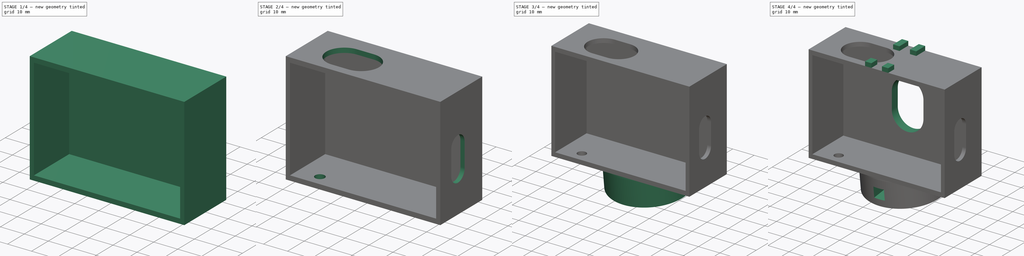
[diagram: build sequence overview — one tinted view per stage of 4, left to right]
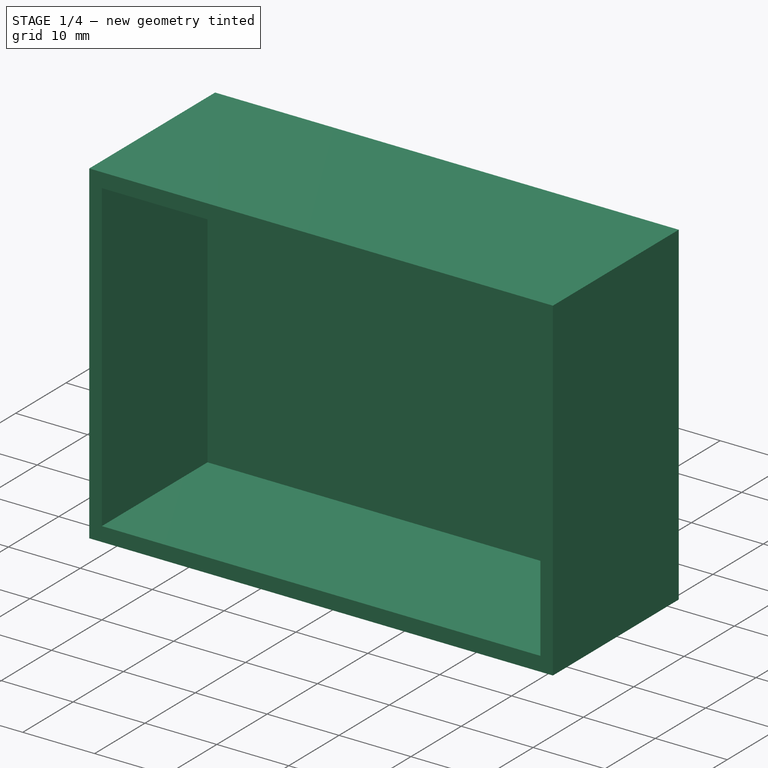
[diagram: stage 1 of 4 — iso view after this stage's code; geometry added in this stage tinted green]
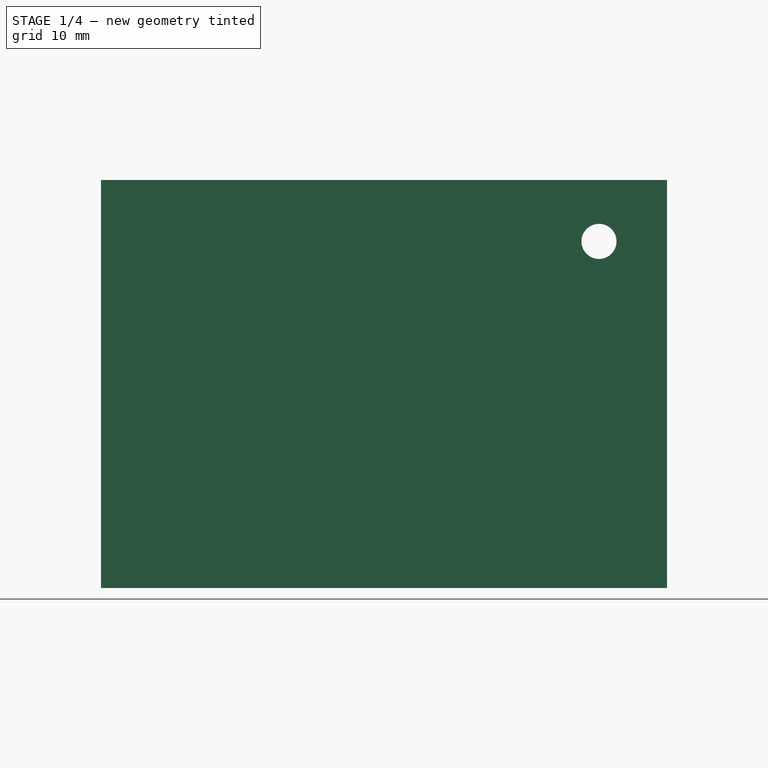
[diagram: stage 1 of 4 — front view after this stage's code; geometry added in this stage tinted green]
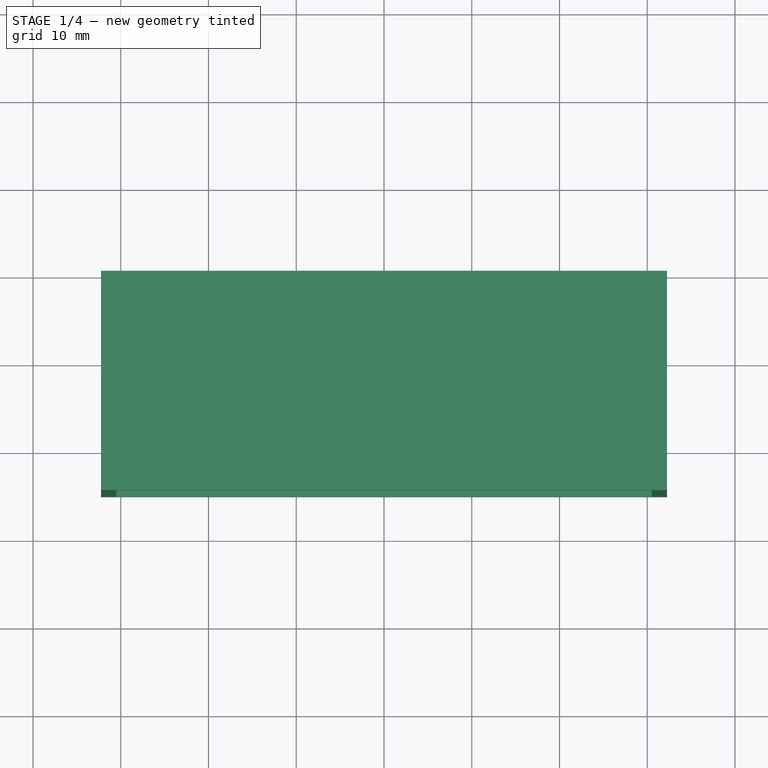
[diagram: stage 1 of 4 — top view after this stage's code; geometry added in this stage tinted green]
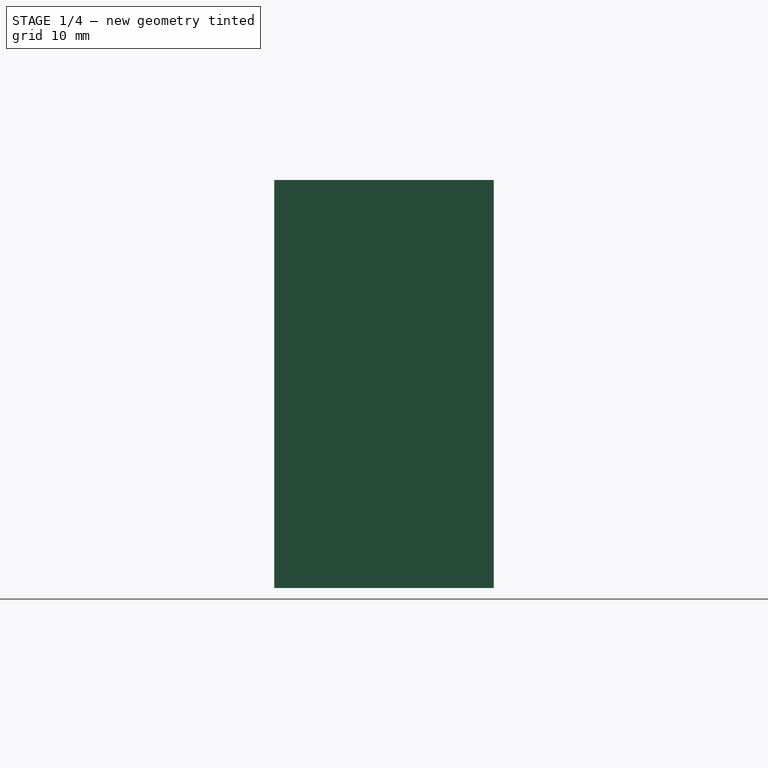
[diagram: stage 1 of 4 — right view after this stage's code; geometry added in this stage tinted green]
FCSTD DOCUMENT  (FreeCAD 0.19R)
Label: yi_holder
License: All rights reserved
LicenseURL: http://en.wikipedia.org/wiki/All_rights_reserved
objects: Sketcher::SketchObject×13, PartDesign::Pocket×8, PartDesign::Pad×5, PartDesign::Plane×1, PartDesign::Body×1
note: 41 computed .brp shape members not serialized (recipe doc carries the construction recipe); baked Part::Feature solids carry a one-line shape summary decoded from their .brp

FEATURE [Sketcher::SketchObject] Sketch
  FullyConstrained = true
  MapMode = 5
  Placement = pos=(0,0,0) rot=(1,0,0;1.5708rad)
  Support = -> [XZ_Plane]
  sketch-geometry (4):
    g0: LineSegment StartX=-32.25 StartY=23.25 StartZ=0 EndX=32.25 EndY=23.25 EndZ=0
    g1: LineSegment StartX=32.25 StartY=23.25 StartZ=0 EndX=32.25 EndY=-23.25 EndZ=0
    g2: LineSegment StartX=32.25 StartY=-23.25 StartZ=0 EndX=-32.25 EndY=-23.25 EndZ=0
    g3: LineSegment StartX=-32.25 StartY=-23.25 StartZ=0 EndX=-32.25 EndY=23.25 EndZ=0
  constraints (10):
    c: Coincident(g0,g1)
    c: Coincident(g1,g2)
    c: Coincident(g2,g3)
    c: Coincident(g3,g0)
    c: Horizontal(g2)
    c: Vertical(g1)
    c: DistanceX(g0,g0) = 64.5
    c: Symmetric(g0,g0,g-2)
    c: DistanceY(g1,g1) = 46.5
    c: Symmetric(g2,g0,g-1)
FEATURE [PartDesign::Pad] Pad
  Direction = (1,1,1)
  Length = 25
  Length2 = 100
  Placement = pos=(0,0,0) rot=(1,0,0;1.5708rad)
  Profile = -> Sketch
  Type = 0
FEATURE [Sketcher::SketchObject] Sketch001
  FullyConstrained = true
  MapMode = 5
  Placement = pos=(0,-25,1.11e-14) rot=(1,0,0;1.5708rad)
  Support = -> [Pad]
  sketch-geometry (4):
    g0: LineSegment StartX=-30.5 StartY=21.25 StartZ=0 EndX=30.5 EndY=21.25 EndZ=0
    g1: LineSegment StartX=30.5 StartY=21.25 StartZ=0 EndX=30.5 EndY=-21.25 EndZ=0
    g2: LineSegment StartX=30.5 StartY=-21.25 StartZ=0 EndX=-30.5 EndY=-21.25 EndZ=0
    g3: LineSegment StartX=-30.5 StartY=-21.25 StartZ=0 EndX=-30.5 EndY=21.25 EndZ=0
  constraints (10):
    c: Coincident(g0,g1)
    c: Coincident(g1,g2)
    c: Coincident(g2,g3)
    c: Coincident(g3,g0)
    c: Horizontal(g2)
    c: Vertical(g3)
    c: DistanceX(g0,g0) = 61
    c: Symmetric(g0,g0,g-2)
    c: Symmetric(g1,g0,g-1)
    c: DistanceY(g1,g1) = 42.5
FEATURE [PartDesign::Pocket] Pocket
  BaseFeature = -> Pad
  Length = 21
  Length2 = 100
  Placement = pos=(0,0,0) rot=(1,0,0;1.5708rad)
  Profile = -> Sketch001
  Type = 0
FEATURE [Sketcher::SketchObject] Sketch002
  ExternalGeometry = -> [Pocket]
  FullyConstrained = true
  MapMode = 5
  Placement = pos=(0,-4,4.2e-15) rot=(1,0,0;1.5708rad)
  Support = -> [Pocket]
  sketch-geometry (1):
    g0: Circle CenterX=24.5 CenterY=16.25 CenterZ=0 NormalX=0 NormalY=0 NormalZ=1 AngleXU=0 Radius=2
  constraints (3):
    c: DistanceY(g0,g-3) = 5
    c: DistanceX(g0,g-3) = 6
    c: Diameter(g0) = 4
FEATURE [PartDesign::Pocket] Pocket001
  BaseFeature = -> Pocket
  Length = 4
  Length2 = 100
  Placement = pos=(0,0,0) rot=(1,0,0;1.5708rad)
  Profile = -> Sketch002
  Type = 0
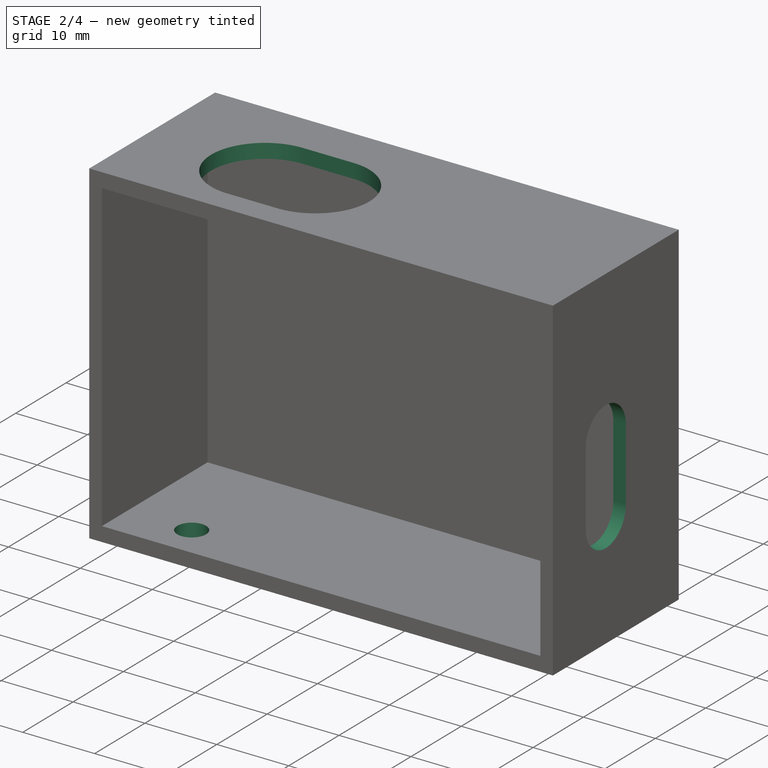
[diagram: stage 2 of 4 — iso view after this stage's code; geometry added in this stage tinted green]
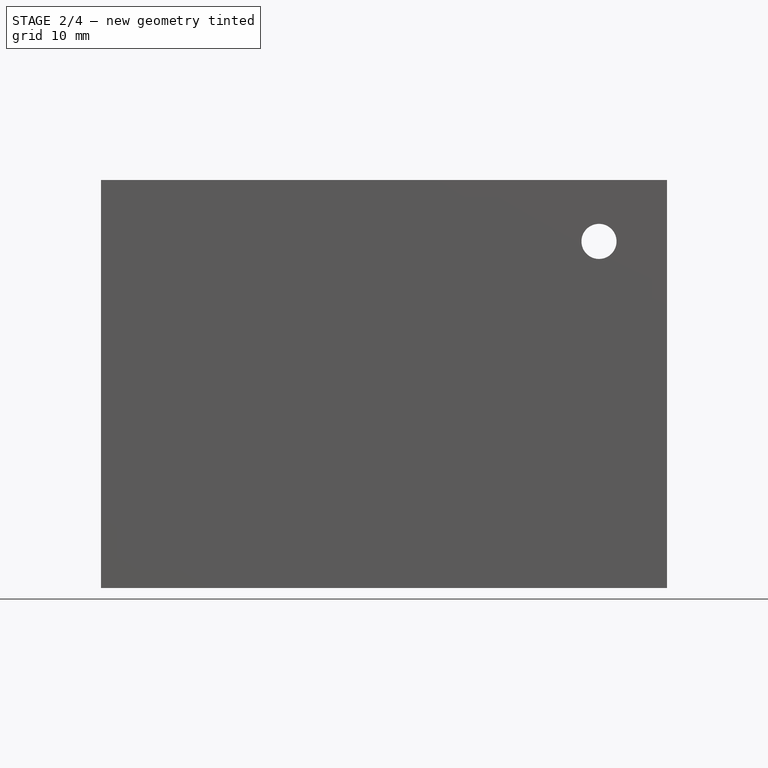
[diagram: stage 2 of 4 — front view after this stage's code; geometry added in this stage tinted green]
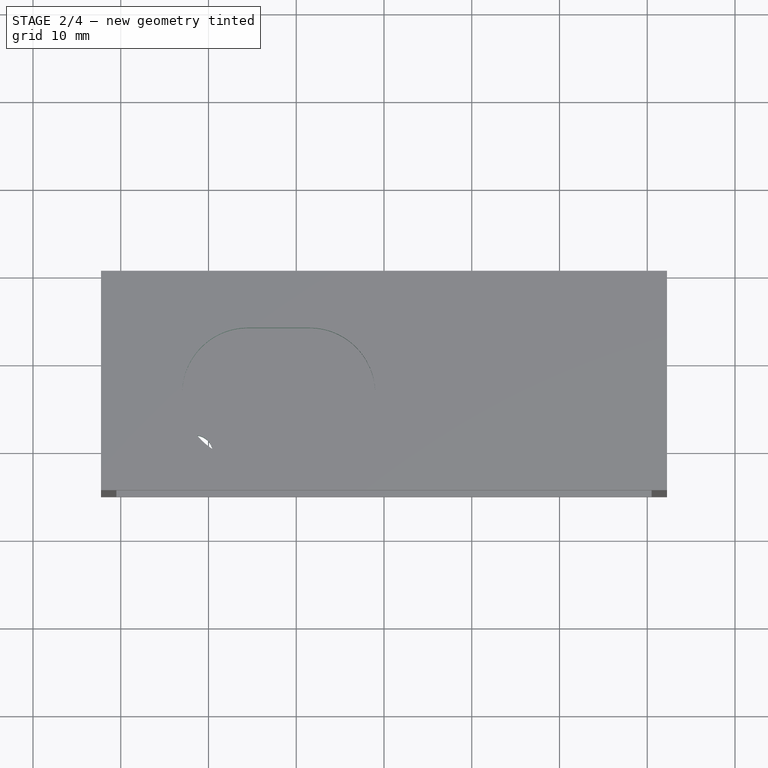
[diagram: stage 2 of 4 — top view after this stage's code; geometry added in this stage tinted green]
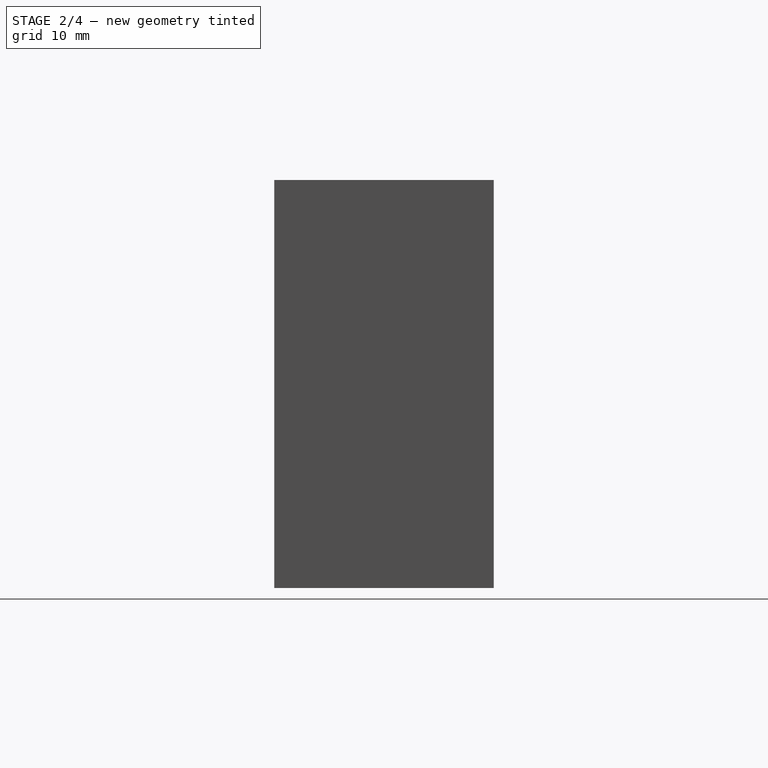
[diagram: stage 2 of 4 — right view after this stage's code; geometry added in this stage tinted green]
FEATURE [Sketcher::SketchObject] Sketch003
  ExternalGeometry = -> [Pocket001]
  FullyConstrained = true
  MapMode = 5
  Placement = pos=(32.25,0,0) rot=(0.707107,0,0.707107;3.14159rad)
  Support = -> [Pocket001]
  sketch-geometry (4):
    g0: ArcOfCircle CenterX=-7.25 CenterY=14.5 CenterZ=0 NormalX=0 NormalY=0 NormalZ=1 AngleXU=0 Radius=4 StartAngle=1.5708 EndAngle=4.71239
    g1: ArcOfCircle CenterX=2.75 CenterY=14.5 CenterZ=0 NormalX=0 NormalY=0 NormalZ=1 AngleXU=0 Radius=4 StartAngle=4.71239 EndAngle=7.85398
    g2: LineSegment StartX=-7.25 StartY=10.5 StartZ=0 EndX=2.75 EndY=10.5 EndZ=0
    g3: LineSegment StartX=-7.25 StartY=18.5 StartZ=0 EndX=2.75 EndY=18.5 EndZ=0
  constraints (10):
    c: Tangent(g0,g3) = 1.5708
    c: Tangent(g0,g2) = -1.5708
    c: Tangent(g2,g1) = -1.5708
    c: Tangent(g3,g1) = 1.5708
    c: Horizontal(g2)
    c: Equal(g0,g1)
    c: DistanceY(g1,g1) = 8
    c: DistanceX(g2,g2) = 10
    c: DistanceY(g1,g-3) = 10.5
    c: DistanceX(g1,g-3) = 18.5
FEATURE [PartDesign::Pocket] Pocket002
  BaseFeature = -> Pocket001
  Length = 2
  Length2 = 100
  Placement = pos=(0,0,0) rot=(1,0,0;1.5708rad)
  Profile = -> Sketch003
  Type = 0
FEATURE [Sketcher::SketchObject] Sketch004
  ExternalGeometry = -> [Pocket002]
  FullyConstrained = true
  MapMode = 5
  Placement = pos=(0,1.54e-14,23.25) rot=(0,0,1;3.14159rad)
  Support = -> [Pocket002]
  sketch-geometry (4):
    g0: ArcOfCircle CenterX=8.5 CenterY=14 CenterZ=0 NormalX=0 NormalY=0 NormalZ=1 AngleXU=0 Radius=7.5 StartAngle=1.5708 EndAngle=4.71239
    g1: ArcOfCircle CenterX=15.5 CenterY=14 CenterZ=0 NormalX=0 NormalY=0 NormalZ=1 AngleXU=0 Radius=7.5 StartAngle=4.71239 EndAngle=7.85398
    g2: LineSegment StartX=8.5 StartY=6.5 StartZ=0 EndX=15.5 EndY=6.5 EndZ=0
    g3: LineSegment StartX=8.5 StartY=21.5 StartZ=0 EndX=15.5 EndY=21.5 EndZ=0
  constraints (10):
    c: Tangent(g0,g3) = 1.5708
    c: Tangent(g0,g2) = -1.5708
    c: Tangent(g2,g1) = -1.5708
    c: Tangent(g3,g1) = 1.5708
    c: Horizontal(g2)
    c: Equal(g0,g1)
    c: DistanceY(g1,g1) = 15
    c: DistanceX(g3,g3) = 7
    c: DistanceX(g1,g-3) = 15
    c: DistanceY(g1,g-3) = 11
FEATURE [PartDesign::Pocket] Pocket003
  BaseFeature = -> Pocket002
  Length = 2
  Length2 = 100
  Placement = pos=(0,0,0) rot=(1,0,0;1.5708rad)
  Profile = -> Sketch004
  Type = 0
FEATURE [Sketcher::SketchObject] Sketch005
  ExternalGeometry = -> [Pocket003]
  FullyConstrained = true
  MapMode = 5
  Placement = pos=(0,-1.54e-14,-23.25) rot=(1,0,0;3.14159rad)
  Support = -> [Pocket003]
  sketch-geometry (1):
    g0: Circle CenterX=-21.5 CenterY=20 CenterZ=0 NormalX=0 NormalY=0 NormalZ=1 AngleXU=0 Radius=2
  constraints (3):
    c: DistanceY(g0,g-3) = 5
    c: DistanceX(g-3,g0) = 9
    c: Diameter(g0) = 4
FEATURE [PartDesign::Pocket] Pocket004
  BaseFeature = -> Pocket003
  Length = 2
  Length2 = 100
  Placement = pos=(0,0,0) rot=(1,0,0;1.5708rad)
  Profile = -> Sketch005
  Type = 0
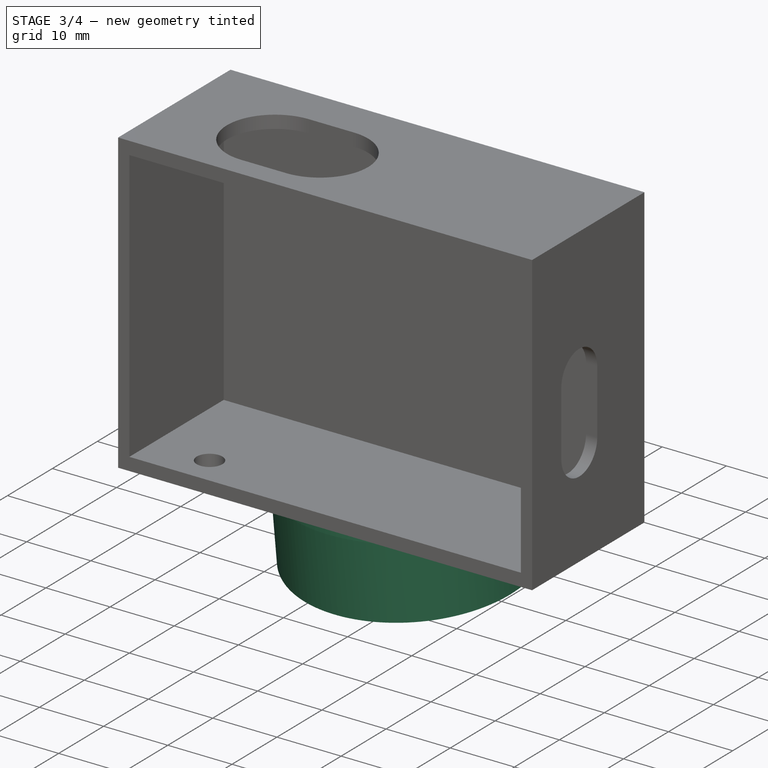
[diagram: stage 3 of 4 — iso view after this stage's code; geometry added in this stage tinted green]
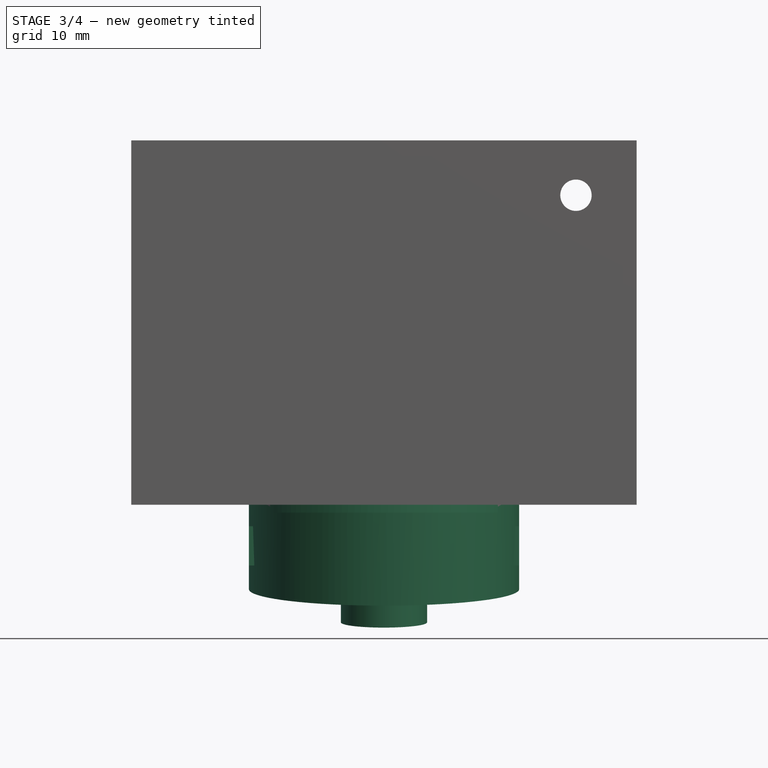
[diagram: stage 3 of 4 — front view after this stage's code; geometry added in this stage tinted green]
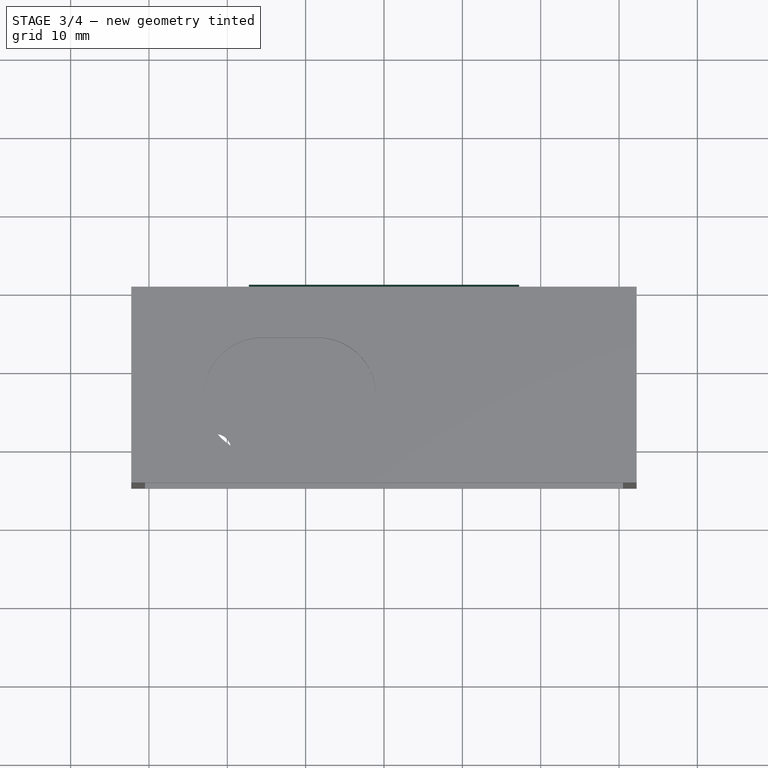
[diagram: stage 3 of 4 — top view after this stage's code; geometry added in this stage tinted green]
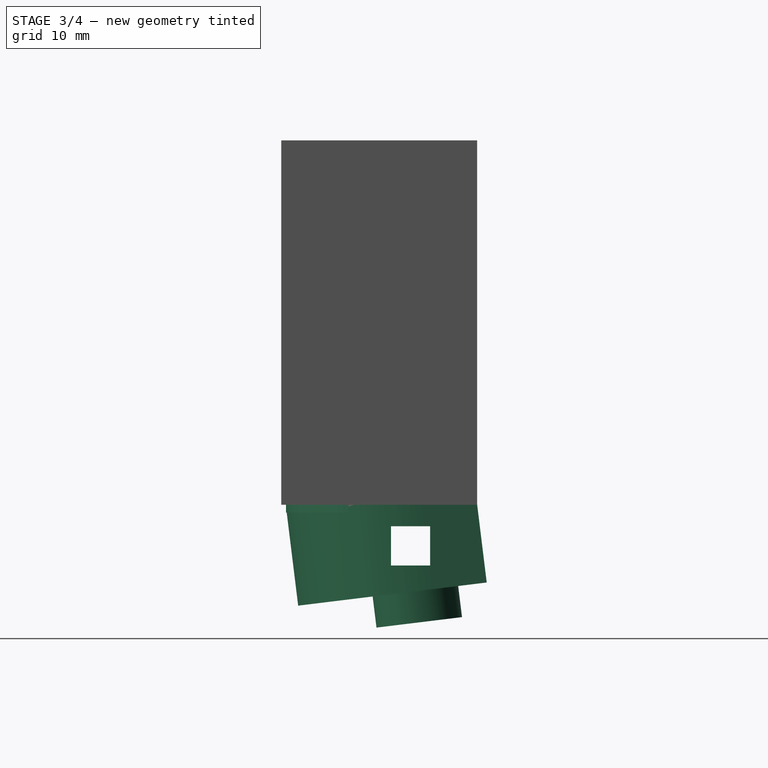
[diagram: stage 3 of 4 — right view after this stage's code; geometry added in this stage tinted green]
FEATURE [PartDesign::Plane] DatumPlane
  AttachmentOffset = pos=(0,0,0) rot=(0.99628,0.060935,0.060935;1.57452rad)
  Length = 69.6231
  MapMode = 7
  Placement = pos=(32.25,-5.2e-15,-23.25) rot=(0.706446,0.706446,0.043208;3.22796rad)
  ResizeMode = 0
  Support = -> [Pocket004]
  Width = 76.6745
FEATURE [Sketcher::SketchObject] Sketch006
  ExternalGeometry = -> [Pocket004]
  FullyConstrained = true
  MapMode = 5
  Placement = pos=(32.25,-5.3e-15,-23.25) rot=(0.706446,0.706446,0.043208;3.22796rad)
  Support = -> [DatumPlane]
  sketch-geometry (4):
    g0: LineSegment StartX=-3e-16 StartY=-15 StartZ=0 EndX=-1e-15 EndY=-49.5 EndZ=0
    g1: LineSegment StartX=-3e-16 StartY=-15 StartZ=0 EndX=-7 EndY=-15 EndZ=0
    g2: LineSegment StartX=-1e-15 StartY=-49.5 StartZ=0 EndX=-7 EndY=-49.5 EndZ=0
    g3: ArcOfCircle CenterX=-7 CenterY=-32.25 CenterZ=0 NormalX=0 NormalY=0 NormalZ=1 AngleXU=0 Radius=17.25 StartAngle=1.5708 EndAngle=4.71239
  constraints (13):
    c: PointOnObject(g0,g-3)
    c: PointOnObject(g0,g-3)
    c: Coincident(g1,g0)
    c: Horizontal(g1)
    c: Coincident(g2,g0)
    c: Horizontal(g2)
    c: Coincident(g3,g1)
    c: Coincident(g3,g2)
    c: DistanceY(g-3,g0) = 15
    c: DistanceY(g0,g-1) = 15
    c: DistanceX(g1,g1) = 7
    c: Equal(g2,g1)
    c: DistanceX(g3,g-3) = 7
FEATURE [PartDesign::Pad] Pad001
  BaseFeature = -> Pocket004
  Direction = (1,1,1)
  Length = 10
  Length2 = 2
  Placement = pos=(0,0,0) rot=(1,0,0;1.5708rad)
  Profile = -> Sketch006
  Type = 4
FEATURE [Sketcher::SketchObject] Sketch007
  ExternalGeometry = -> [Pad001]
  FullyConstrained = true
  MapMode = 5
  Placement = pos=(0,-1.54e-14,-23.25) rot=(1,0,0;3.14159rad)
  Support = -> [Pad001]
  sketch-geometry (2):
    g0: ArcOfCircle CenterX=-1.42e-14 CenterY=7.19156 CenterZ=0 NormalX=0 NormalY=0 NormalZ=1 AngleXU=0 Radius=17.2128 StartAngle=0.565237 EndAngle=2.57636
    g1: LineSegment StartX=-14.5356 StartY=16.411 StartZ=0 EndX=14.5356 EndY=16.411 EndZ=0
  constraints (5):
    c: Coincident(g0,g-3)
    c: Coincident(g0,g-4)
    c: Coincident(g0,g-4)
    c: Coincident(g1,g0)
    c: Coincident(g1,g0)
FEATURE [PartDesign::Pad] Pad002
  BaseFeature = -> Pad001
  Direction = (1,1,1)
  Length = 1
  Length2 = 100
  Placement = pos=(0,0,0) rot=(1,0,0;1.5708rad)
  Profile = -> Sketch007
  Type = 0
FEATURE [Sketcher::SketchObject] Sketch008
  FullyConstrained = true
  MapMode = 5
  Placement = pos=(6.6e-15,4.03104,-32.8301) rot=(1,0,0;3.26377rad)
  Support = -> [Pad002]
  sketch-geometry (1):
    g0: Circle CenterX=0 CenterY=12 CenterZ=0 NormalX=0 NormalY=0 NormalZ=1 AngleXU=0 Radius=5.5
  constraints (3):
    c: PointOnObject(g0,g-2)
    c: Diameter(g0) = 11
    c: DistanceY(g-1,g0) = 12
FEATURE [PartDesign::Pad] Pad003
  BaseFeature = -> Pad002
  Direction = (1,1,1)
  Length = 4
  Length2 = 100
  Placement = pos=(0,0,0) rot=(1,0,0;1.5708rad)
  Profile = -> Sketch008
  Type = 0
FEATURE [Sketcher::SketchObject] Sketch009
  FullyConstrained = true
  MapMode = 5
  Placement = pos=(17.25,3.4e-15,3.8e-15) rot=(0.707107,0,0.707107;3.14159rad)
  Support = -> [Pad003]
  sketch-geometry (4):
    g0: LineSegment StartX=-31 StartY=11 StartZ=0 EndX=-26 EndY=11 EndZ=0
    g1: LineSegment StartX=-26 StartY=11 StartZ=0 EndX=-26 EndY=6 EndZ=0
    g2: LineSegment StartX=-26 StartY=6 StartZ=0 EndX=-31 EndY=6 EndZ=0
    g3: LineSegment StartX=-31 StartY=6 StartZ=0 EndX=-31 EndY=11 EndZ=0
  constraints (12):
    c: Coincident(g0,g1)
    c: Coincident(g1,g2)
    c: Coincident(g2,g3)
    c: Coincident(g3,g0)
    c: Horizontal(g0)
    c: Horizontal(g2)
    c: Vertical(g1)
    c: Vertical(g3)
    c: Equal(g2,g3)
    c: DistanceX(g0,g0) = 5
    c: DistanceX(g1,g-1) = 26
    c: DistanceY(g-1,g1) = 6
FEATURE [PartDesign::Pocket] Pocket005
  BaseFeature = -> Pad003
  Length = 5
  Length2 = 100
  Placement = pos=(0,0,0) rot=(1,0,0;1.5708rad)
  Profile = -> Sketch009
  Type = 1
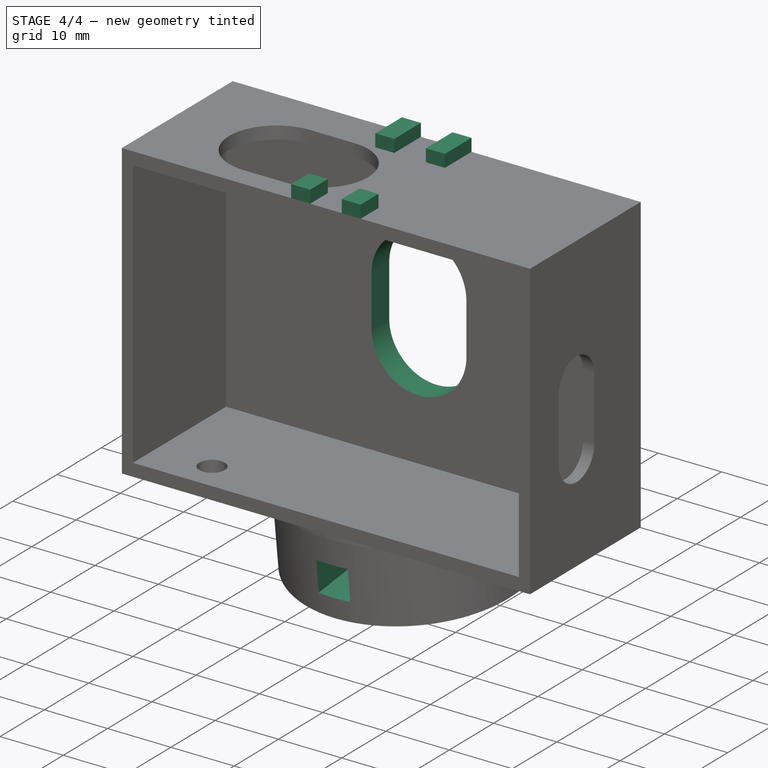
[diagram: stage 4 of 4 — iso view after this stage's code; geometry added in this stage tinted green]
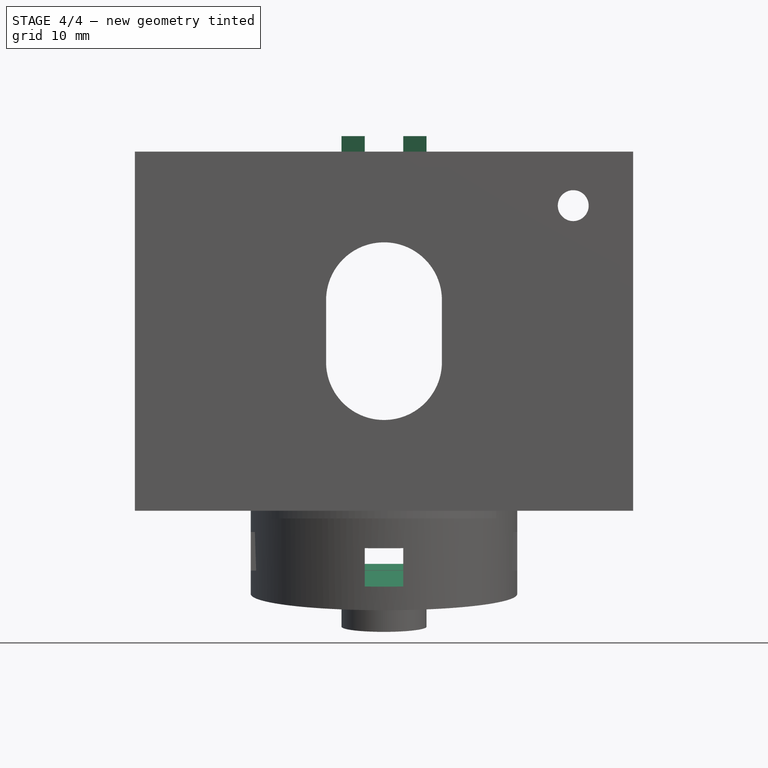
[diagram: stage 4 of 4 — front view after this stage's code; geometry added in this stage tinted green]
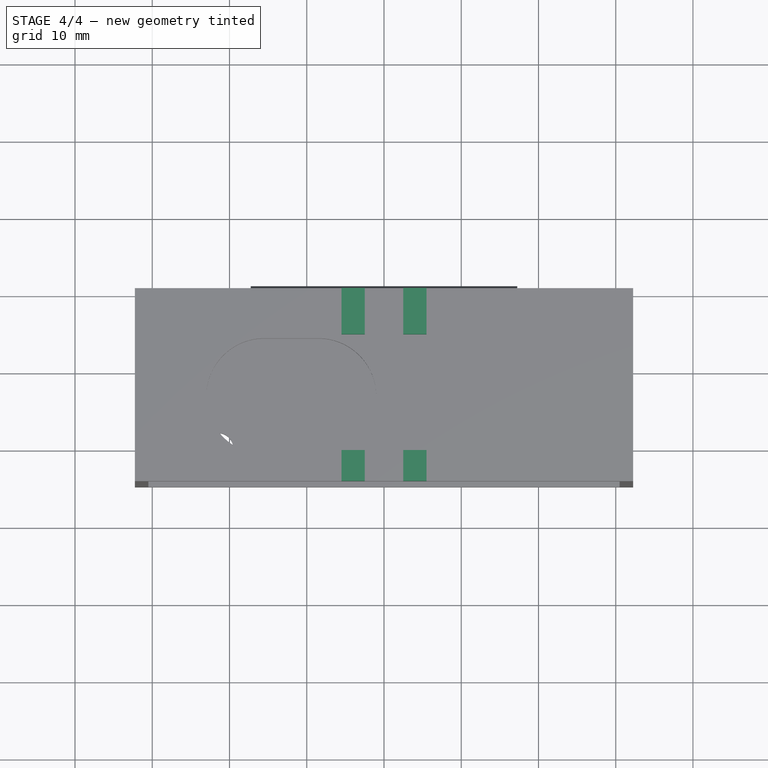
[diagram: stage 4 of 4 — top view after this stage's code; geometry added in this stage tinted green]
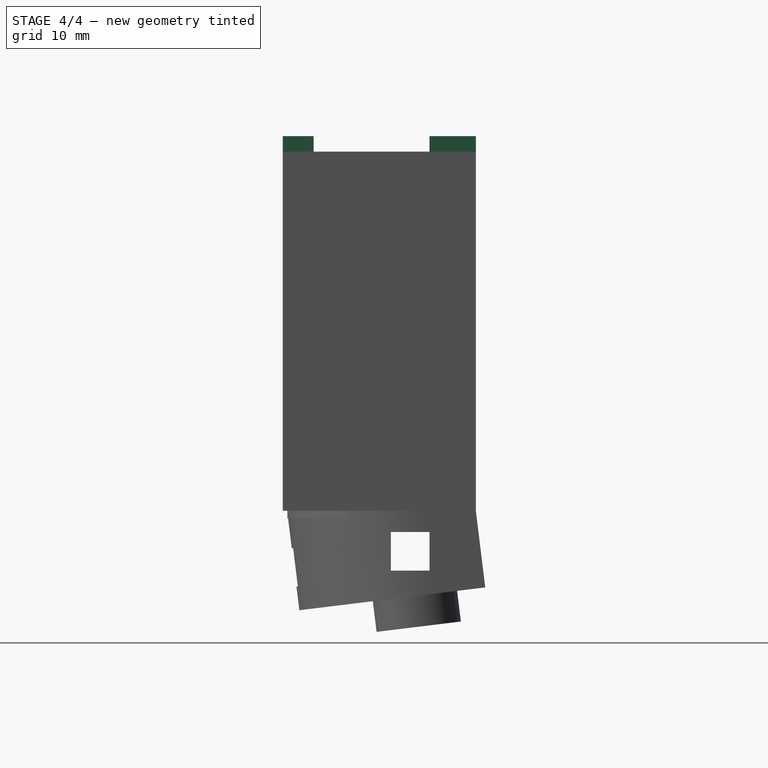
[diagram: stage 4 of 4 — right view after this stage's code; geometry added in this stage tinted green]
FEATURE [Sketcher::SketchObject] Sketch010
  FullyConstrained = true
  MapMode = 5
  Placement = pos=(7e-16,-2.81234,-0.345312) rot=(-1,0,0;1.44862rad)
  Support = -> [Pocket005]
  sketch-geometry (4):
    g0: LineSegment StartX=-2.5 StartY=30 StartZ=0 EndX=2.5 EndY=30 EndZ=0
    g1: LineSegment StartX=2.5 StartY=30 StartZ=0 EndX=2.5 EndY=25 EndZ=0
    g2: LineSegment StartX=2.5 StartY=25 StartZ=0 EndX=-2.5 EndY=25 EndZ=0
    g3: LineSegment StartX=-2.5 StartY=25 StartZ=0 EndX=-2.5 EndY=30 EndZ=0
  constraints (11):
    c: Coincident(g0,g1)
    c: Coincident(g1,g2)
    c: Coincident(g2,g3)
    c: Coincident(g3,g0)
    c: Horizontal(g2)
    c: Vertical(g1)
    c: Vertical(g3)
    c: Equal(g1,g0)
    c: DistanceX(g0,g0) = 5
    c: Symmetric(g0,g0,g-2)
    c: DistanceY(g-1,g1) = 25
FEATURE [PartDesign::Pocket] Pocket006
  BaseFeature = -> Pocket005
  Length = 5
  Length2 = 100
  Placement = pos=(0,0,0) rot=(1,0,0;1.5708rad)
  Profile = -> Sketch010
  Type = 1
FEATURE [Sketcher::SketchObject] Sketch011
  ExternalGeometry = -> [Pocket006]
  FullyConstrained = true
  MapMode = 5
  Placement = pos=(0,1.54e-14,23.25) rot=(0,0,1;3.14159rad)
  Support = -> [Pocket006]
  sketch-geometry (16):
    g0: LineSegment StartX=-5.5 StartY=0 StartZ=0 EndX=-2.5 EndY=0 EndZ=0
    g1: LineSegment StartX=-2.5 StartY=0 StartZ=0 EndX=-2.5 EndY=6 EndZ=0
    g2: LineSegment StartX=-2.5 StartY=6 StartZ=0 EndX=-5.5 EndY=6 EndZ=0
    g3: LineSegment StartX=-5.5 StartY=6 StartZ=0 EndX=-5.5 EndY=0 EndZ=0
    g4: LineSegment StartX=2.5 StartY=0 StartZ=0 EndX=5.5 EndY=0 EndZ=0
    g5: LineSegment StartX=5.5 StartY=0 StartZ=0 EndX=5.5 EndY=6 EndZ=0
    g6: LineSegment StartX=5.5 StartY=6 StartZ=0 EndX=2.5 EndY=6 EndZ=0
    g7: LineSegment StartX=2.5 StartY=6 StartZ=0 EndX=2.5 EndY=0 EndZ=0
    g8: LineSegment StartX=-5.5 StartY=25 StartZ=0 EndX=-2.5 EndY=25 EndZ=0
    g9: LineSegment StartX=-2.5 StartY=25 StartZ=0 EndX=-2.5 EndY=21 EndZ=0
    g10: LineSegment StartX=-2.5 StartY=21 StartZ=0 EndX=-5.5 EndY=21 EndZ=0
    g11: LineSegment StartX=-5.5 StartY=21 StartZ=0 EndX=-5.5 EndY=25 EndZ=0
    g12: LineSegment StartX=5.5 StartY=25 StartZ=0 EndX=2.5 EndY=25 EndZ=0
    g13: LineSegment StartX=2.5 StartY=25 StartZ=0 EndX=2.5 EndY=21 EndZ=0
    g14: LineSegment StartX=2.5 StartY=21 StartZ=0 EndX=5.5 EndY=21 EndZ=0
    g15: LineSegment StartX=5.5 StartY=21 StartZ=0 EndX=5.5 EndY=25 EndZ=0
  constraints (46):
    c: Coincident(g0,g1)
    c: Coincident(g1,g2)
    c: Coincident(g2,g3)
    c: Coincident(g3,g0)
    c: Horizontal(g0)
    c: Vertical(g1)
    c: Vertical(g3)
    c: PointOnObject(g0,g-4)
    c: Coincident(g4,g5)
    c: Coincident(g5,g6)
    c: Coincident(g6,g7)
    c: Coincident(g7,g4)
    c: Horizontal(g4)
    c: Horizontal(g6)
    c: Vertical(g5)
    c: Vertical(g7)
    c: PointOnObject(g4,g-4)
    c: Coincident(g9,g10)
    c: Coincident(g10,g11)
    c: Coincident(g11,g8)
    c: Horizontal(g8)
    c: Vertical(g11)
    c: PointOnObject(g8,g-3)
    c: Coincident(g12,g13)
    c: Horizontal(g12)
    c: Vertical(g13)
    c: Symmetric(g6,g1,g-2)
    c: Equal(g6,g2)
    c: DistanceX(g1,g6) = 5
    c: DistanceY(g5,g5) = 6
    c: Horizontal(g2)
    c: DistanceX(g2,g2) = 3
    c: Equal(g2,g10)
    c: Horizontal(g10)
    c: Coincident(g9,g8)
    c: Equal(g9,g13)
    c: Coincident(g13,g14)
    c: Coincident(g14,g15)
    c: Vertical(g15)
    c: Horizontal(g14)
    c: Coincident(g15,g12)
    c: Symmetric(g8,g12,g-2)
    c: Vertical(g9)
    c: Equal(g8,g12)
    c: DistanceX(g9,g13) = 5
    c: DistanceY(g15,g15) = 4
FEATURE [PartDesign::Pad] Pad004
  BaseFeature = -> Pocket006
  Direction = (1,1,1)
  Length = 2
  Length2 = 100
  Placement = pos=(0,0,0) rot=(1,0,0;1.5708rad)
  Profile = -> Sketch011
  Type = 0
FEATURE [Sketcher::SketchObject] Sketch012
  FullyConstrained = true
  MapMode = 5
  Placement = pos=(0,0,0) rot=(-1,0,0;1.5708rad)
  Support = -> [Pad004]
  sketch-geometry (4):
    g0: ArcOfCircle CenterX=0 CenterY=4 CenterZ=0 NormalX=0 NormalY=0 NormalZ=1 AngleXU=0 Radius=7.5 StartAngle=1e-16 EndAngle=3.14159
    g1: ArcOfCircle CenterX=0 CenterY=-4 CenterZ=0 NormalX=0 NormalY=0 NormalZ=1 AngleXU=0 Radius=7.5 StartAngle=3.14159 EndAngle=6.28319
    g2: LineSegment StartX=-7.5 StartY=4 StartZ=0 EndX=-7.5 EndY=-4 EndZ=0
    g3: LineSegment StartX=7.5 StartY=4 StartZ=0 EndX=7.5 EndY=-4 EndZ=0
  constraints (9):
    c: Tangent(g0,g3) = 1.5708
    c: Tangent(g0,g2) = -1.5708
    c: Tangent(g2,g1) = -1.5708
    c: Tangent(g3,g1) = 1.5708
    c: Vertical(g2)
    c: PointOnObject(g1,g-2)
    c: DistanceX(g1,g1) = 15
    c: Symmetric(g1,g0,g-1)
    c: DistanceY(g3,g3) = 8
FEATURE [PartDesign::Pocket] Pocket007
  BaseFeature = -> Pad004
  Length = 5
  Length2 = 100
  Placement = pos=(0,0,0) rot=(1,0,0;1.5708rad)
  Profile = -> Sketch012
  Type = 0
FEATURE [PartDesign::Body] Body
  Group = -> [Sketch,Pad,Sketch001,Pocket,Sketch002,Pocket001,Sketch003,Pocket002,Sketch004,Pocket003,Sketch005,Pocket004,DatumPlane,Sketch006,Pad001,Sketch007,Pad002,Sketch008,Pad003,Sketch009,Pocket005,Sketch010,Pocket006,Sketch011,Pad004,Sketch012,Pocket007]
  Origin = -> Origin
  Tip = -> Pocket007
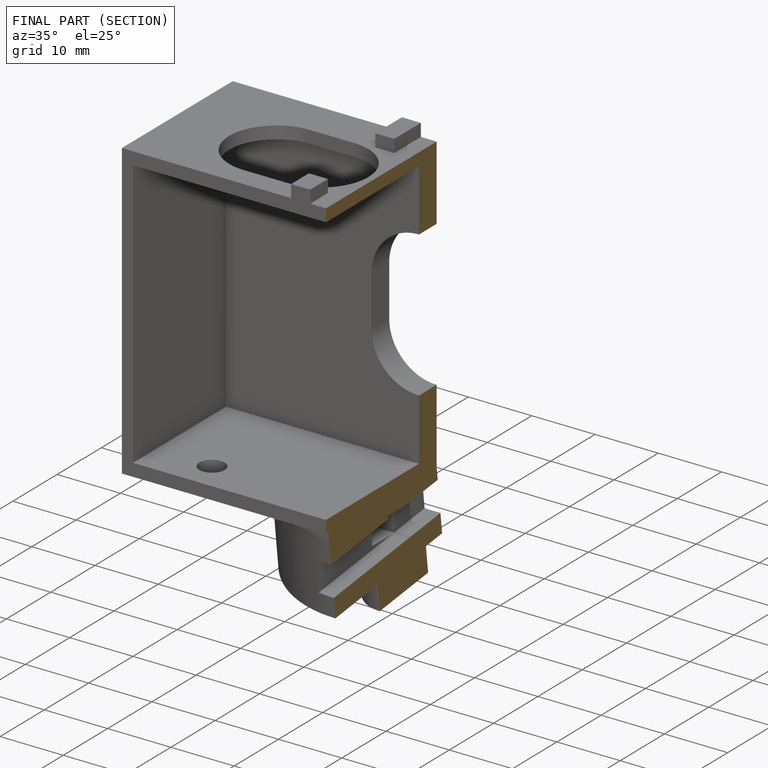
[diagram: finished part — half-section view (interior)]
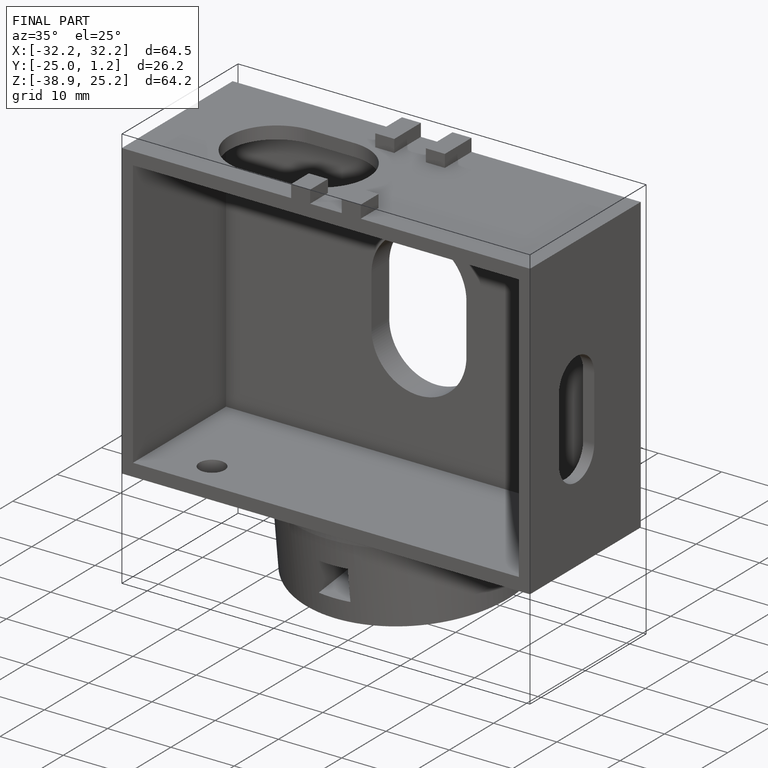
[diagram: finished part — iso view with bounding-box wireframe]
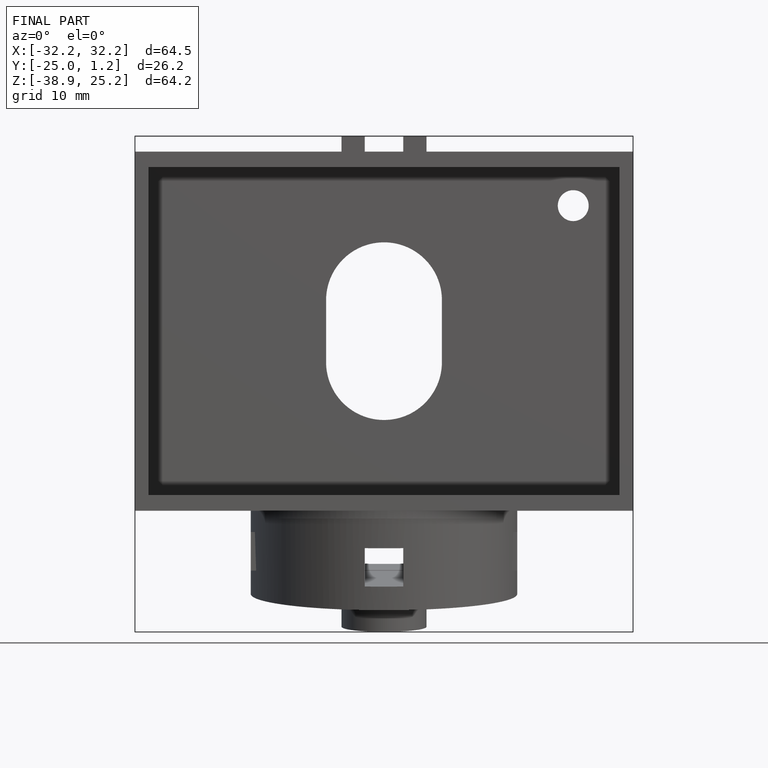
[diagram: finished part — front view with bounding-box wireframe]
